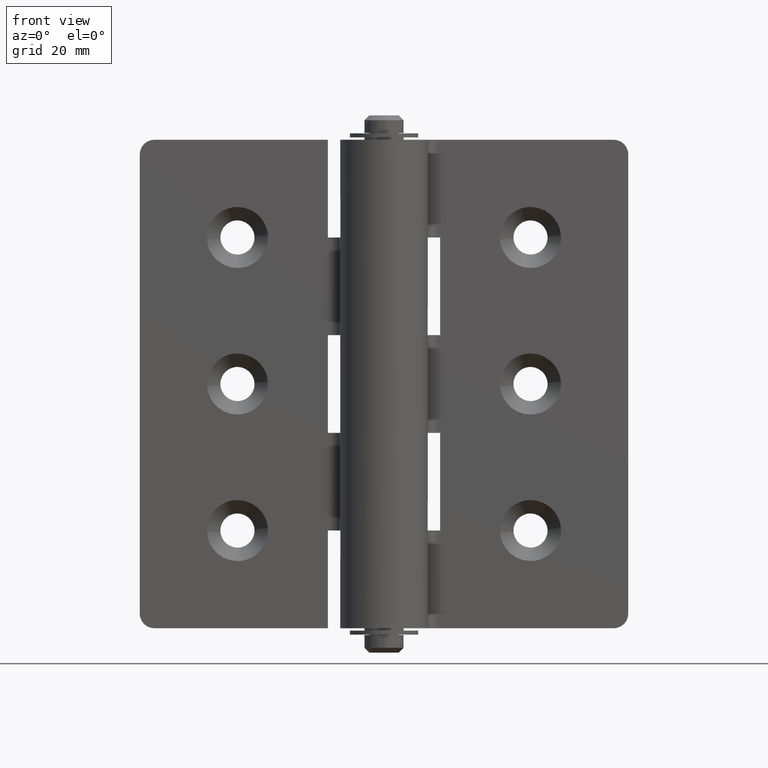
[diagram: clean part render]
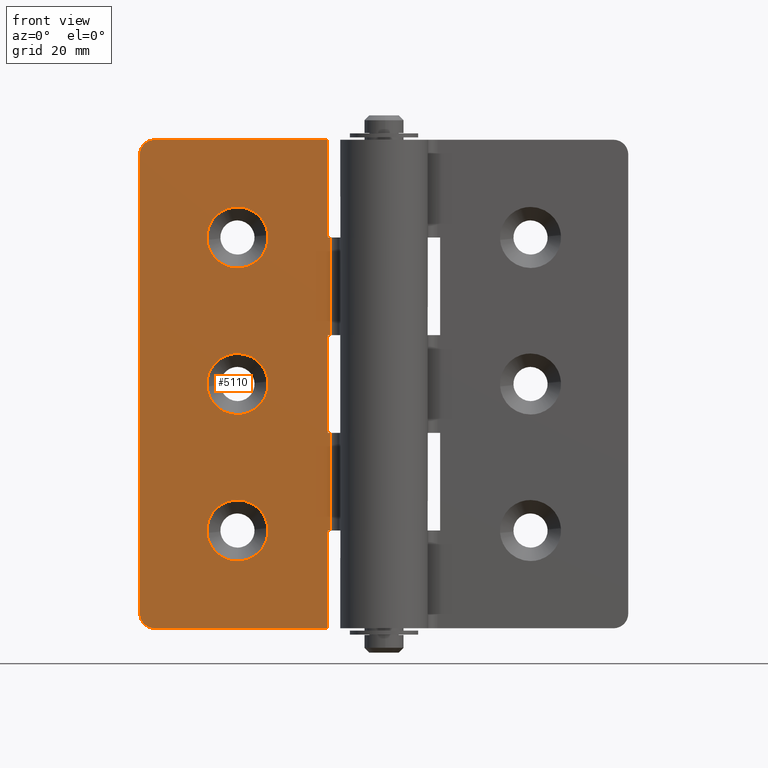
[diagram: same view with one face highlighted and labeled with its STEP entity id]
A machine part, front view. The second image highlights one B-rep face of the part: STEP entity #5110.
In plain terms, the highlighted face is a freeform B-spline surface patch.
Its self-contained STEP definition (entity closure, byte-faithful):
#3210=CARTESIAN_POINT('',(-23.769266664164942,2.999999999992340,80.490369348358399));
#3211=VERTEX_POINT('',#3210);
#3217=CARTESIAN_POINT('',(-30.0,3.0,86.250000000000014));
#3218=VERTEX_POINT('',#3217);
#3219=CARTESIAN_POINT('',(-30.0,3.0,86.250000000000014));
#3220=CARTESIAN_POINT('',(-24.222559427187036,2.999999999996170,86.250000000000341));
#3221=CARTESIAN_POINT('',(-23.769266664164938,2.999999999992340,80.490369348358399));
#3229=(BOUNDED_CURVE()B_SPLINE_CURVE(2,(#3219,#3220,#3221),.UNSPECIFIED.,.F.,.U.)B_SPLINE_CURVE_WITH_KNOTS((3,3),(0.0,0.236331300631150),.UNSPECIFIED.)CURVE()GEOMETRIC_REPRESENTATION_ITEM()RATIONAL_B_SPLINE_CURVE((1.0,0.723120658607091,0.969723356168442))REPRESENTATION_ITEM(''));
#3230=EDGE_CURVE('',#3218,#3211,#3229,.T.);
#3232=CARTESIAN_POINT('',(-36.230733335835062,2.999999999992342,79.509630651641601));
#3233=VERTEX_POINT('',#3232);
#3234=CARTESIAN_POINT('',(-36.230733335835055,2.999999999992342,79.509630651641601));
#3235=CARTESIAN_POINT('',(-36.250000000007489,2.999999999992481,79.754436831171958));
#3236=CARTESIAN_POINT('',(-36.250000000007333,2.999999999992632,79.999999999999446));
#3237=CARTESIAN_POINT('',(-36.250000000003524,2.999999999996461,86.249999999999730));
#3238=CARTESIAN_POINT('',(-30.0,3.0,86.250000000000014));
#3246=(BOUNDED_CURVE()B_SPLINE_CURVE(2,(#3234,#3235,#3236,#3237,#3238),.UNSPECIFIED.,.F.,.U.)B_SPLINE_CURVE_WITH_KNOTS((3,2,3),(0.736331300631150,0.750000000000000,1.0),.UNSPECIFIED.)CURVE()GEOMETRIC_REPRESENTATION_ITEM()RATIONAL_B_SPLINE_CURVE((0.969723356168441,0.983986122579457,1.0,0.707106781186547,1.0))REPRESENTATION_ITEM(''));
#3247=EDGE_CURVE('',#3233,#3218,#3246,.T.);
#3283=CARTESIAN_POINT('',(-30.0,3.0,73.750000000000000));
#3284=VERTEX_POINT('',#3283);
#3285=CARTESIAN_POINT('',(-30.0,3.0,73.750000000000000));
#3286=CARTESIAN_POINT('',(-35.777440572812949,2.999999999996172,73.749999999999702));
#3287=CARTESIAN_POINT('',(-36.230733335835055,2.999999999992342,79.509630651641601));
#3295=(BOUNDED_CURVE()B_SPLINE_CURVE(2,(#3285,#3286,#3287),.UNSPECIFIED.,.F.,.U.)B_SPLINE_CURVE_WITH_KNOTS((3,3),(0.500000000000000,0.736331300631150),.UNSPECIFIED.)CURVE()GEOMETRIC_REPRESENTATION_ITEM()RATIONAL_B_SPLINE_CURVE((1.0,0.723120658607091,0.969723356168441))REPRESENTATION_ITEM(''));
#3296=EDGE_CURVE('',#3284,#3233,#3295,.T.);
#3298=CARTESIAN_POINT('',(-23.769266664164942,2.999999999992340,80.490369348358399));
#3299=CARTESIAN_POINT('',(-23.749999999992500,2.999999999992479,80.245563168828042));
#3300=CARTESIAN_POINT('',(-23.749999999992649,2.999999999992629,80.000000000000568));
#3301=CARTESIAN_POINT('',(-23.749999999996476,2.999999999996460,73.750000000000270));
#3302=CARTESIAN_POINT('',(-30.0,3.0,73.750000000000000));
#3310=(BOUNDED_CURVE()B_SPLINE_CURVE(2,(#3298,#3299,#3300,#3301,#3302),.UNSPECIFIED.,.F.,.U.)B_SPLINE_CURVE_WITH_KNOTS((3,2,3),(0.236331300631150,0.250000000000000,0.500000000000000),.UNSPECIFIED.)CURVE()GEOMETRIC_REPRESENTATION_ITEM()RATIONAL_B_SPLINE_CURVE((0.969723356168442,0.983986122579457,1.0,0.707106781186547,1.0))REPRESENTATION_ITEM(''));
#3311=EDGE_CURVE('',#3211,#3284,#3310,.T.);
#3522=CARTESIAN_POINT('',(-23.769266664164942,2.999999999992341,50.490369348358414));
#3523=VERTEX_POINT('',#3522);
#3529=CARTESIAN_POINT('',(-30.0,3.0,56.250000000000000));
#3530=VERTEX_POINT('',#3529);
#3531=CARTESIAN_POINT('',(-30.0,3.0,56.250000000000000));
#3532=CARTESIAN_POINT('',(-24.222559427187058,2.999999999996171,56.250000000000298));
#3533=CARTESIAN_POINT('',(-23.769266664164942,2.999999999992342,50.490369348358414));
#3541=(BOUNDED_CURVE()B_SPLINE_CURVE(2,(#3531,#3532,#3533),.UNSPECIFIED.,.F.,.U.)B_SPLINE_CURVE_WITH_KNOTS((3,3),(0.0,0.236331300631149),.UNSPECIFIED.)CURVE()GEOMETRIC_REPRESENTATION_ITEM()RATIONAL_B_SPLINE_CURVE((1.0,0.723120658607092,0.969723356168440))REPRESENTATION_ITEM(''));
#3542=EDGE_CURVE('',#3530,#3523,#3541,.T.);
#3544=CARTESIAN_POINT('',(-36.230733335835062,2.999999999992339,49.509630651641586));
#3545=VERTEX_POINT('',#3544);
#3546=CARTESIAN_POINT('',(-36.230733335835055,2.999999999992339,49.509630651641586));
#3547=CARTESIAN_POINT('',(-36.250000000007496,2.999999999992479,49.754436831171958));
#3548=CARTESIAN_POINT('',(-36.250000000007347,2.999999999992629,49.999999999999417));
#3549=CARTESIAN_POINT('',(-36.250000000003524,2.999999999996460,56.249999999999723));
#3550=CARTESIAN_POINT('',(-30.0,3.0,56.250000000000000));
#3558=(BOUNDED_CURVE()B_SPLINE_CURVE(2,(#3546,#3547,#3548,#3549,#3550),.UNSPECIFIED.,.F.,.U.)B_SPLINE_CURVE_WITH_KNOTS((3,2,3),(0.736331300631150,0.750000000000000,1.0),.UNSPECIFIED.)CURVE()GEOMETRIC_REPRESENTATION_ITEM()RATIONAL_B_SPLINE_CURVE((0.969723356168441,0.983986122579456,1.0,0.707106781186547,1.0))REPRESENTATION_ITEM(''));
#3559=EDGE_CURVE('',#3545,#3530,#3558,.T.);
#3595=CARTESIAN_POINT('',(-30.0,3.0,43.750000000000007));
#3596=VERTEX_POINT('',#3595);
#3597=CARTESIAN_POINT('',(-30.0,3.0,43.750000000000007));
#3598=CARTESIAN_POINT('',(-35.777440572812921,2.999999999996170,43.749999999999709));
#3599=CARTESIAN_POINT('',(-36.230733335835055,2.999999999992339,49.509630651641586));
#3607=(BOUNDED_CURVE()B_SPLINE_CURVE(2,(#3597,#3598,#3599),.UNSPECIFIED.,.F.,.U.)B_SPLINE_CURVE_WITH_KNOTS((3,3),(0.500000000000000,0.736331300631149),.UNSPECIFIED.)CURVE()GEOMETRIC_REPRESENTATION_ITEM()RATIONAL_B_SPLINE_CURVE((1.0,0.723120658607092,0.969723356168440))REPRESENTATION_ITEM(''));
#3608=EDGE_CURVE('',#3596,#3545,#3607,.T.);
#3610=CARTESIAN_POINT('',(-23.769266664164945,2.999999999992342,50.490369348358414));
#3611=CARTESIAN_POINT('',(-23.749999999992507,2.999999999992481,50.245563168828049));
#3612=CARTESIAN_POINT('',(-23.749999999992649,2.999999999992631,50.000000000000583));
#3613=CARTESIAN_POINT('',(-23.749999999996476,2.999999999996461,43.750000000000284));
#3614=CARTESIAN_POINT('',(-30.0,3.0,43.750000000000007));
#3622=(BOUNDED_CURVE()B_SPLINE_CURVE(2,(#3610,#3611,#3612,#3613,#3614),.UNSPECIFIED.,.F.,.U.)B_SPLINE_CURVE_WITH_KNOTS((3,2,3),(0.236331300631150,0.250000000000000,0.500000000000000),.UNSPECIFIED.)CURVE()GEOMETRIC_REPRESENTATION_ITEM()RATIONAL_B_SPLINE_CURVE((0.969723356168440,0.983986122579456,1.0,0.707106781186547,1.0))REPRESENTATION_ITEM(''));
#3623=EDGE_CURVE('',#3523,#3596,#3622,.T.);
#3834=CARTESIAN_POINT('',(-23.769266664164949,2.999999999992341,20.490369348358410));
#3835=VERTEX_POINT('',#3834);
#3841=CARTESIAN_POINT('',(-30.0,3.0,26.250000000000000));
#3842=VERTEX_POINT('',#3841);
#3843=CARTESIAN_POINT('',(-30.0,3.0,26.250000000000000));
#3844=CARTESIAN_POINT('',(-24.222559427187061,2.999999999996171,26.250000000000306));
#3845=CARTESIAN_POINT('',(-23.769266664164945,2.999999999992342,20.490369348358414));
#3853=(BOUNDED_CURVE()B_SPLINE_CURVE(2,(#3843,#3844,#3845),.UNSPECIFIED.,.F.,.U.)B_SPLINE_CURVE_WITH_KNOTS((3,3),(0.0,0.236331300631150),.UNSPECIFIED.)CURVE()GEOMETRIC_REPRESENTATION_ITEM()RATIONAL_B_SPLINE_CURVE((1.0,0.723120658607091,0.969723356168440))REPRESENTATION_ITEM(''));
#3854=EDGE_CURVE('',#3842,#3835,#3853,.T.);
#3856=CARTESIAN_POINT('',(-36.230733335835062,2.999999999992340,19.509630651641590));
#3857=VERTEX_POINT('',#3856);
#3858=CARTESIAN_POINT('',(-36.230733335835055,2.999999999992340,19.509630651641586));
#3859=CARTESIAN_POINT('',(-36.250000000007496,2.999999999992479,19.754436831171954));
#3860=CARTESIAN_POINT('',(-36.250000000007347,2.999999999992630,19.999999999999421));
#3861=CARTESIAN_POINT('',(-36.250000000003524,2.999999999996460,26.249999999999734));
#3862=CARTESIAN_POINT('',(-30.0,3.0,26.250000000000000));
#3870=(BOUNDED_CURVE()B_SPLINE_CURVE(2,(#3858,#3859,#3860,#3861,#3862),.UNSPECIFIED.,.F.,.U.)B_SPLINE_CURVE_WITH_KNOTS((3,2,3),(0.736331300631150,0.750000000000000,1.0),.UNSPECIFIED.)CURVE()GEOMETRIC_REPRESENTATION_ITEM()RATIONAL_B_SPLINE_CURVE((0.969723356168441,0.983986122579456,1.0,0.707106781186547,1.0))REPRESENTATION_ITEM(''));
#3871=EDGE_CURVE('',#3857,#3842,#3870,.T.);
#3907=CARTESIAN_POINT('',(-30.0,3.0,13.750000000000000));
#3908=VERTEX_POINT('',#3907);
#3909=CARTESIAN_POINT('',(-30.0,3.0,13.750000000000000));
#3910=CARTESIAN_POINT('',(-35.777440572812942,2.999999999996170,13.749999999999702));
#3911=CARTESIAN_POINT('',(-36.230733335835055,2.999999999992340,19.509630651641594));
#3919=(BOUNDED_CURVE()B_SPLINE_CURVE(2,(#3909,#3910,#3911),.UNSPECIFIED.,.F.,.U.)B_SPLINE_CURVE_WITH_KNOTS((3,3),(0.500000000000000,0.736331300631150),.UNSPECIFIED.)CURVE()GEOMETRIC_REPRESENTATION_ITEM()RATIONAL_B_SPLINE_CURVE((1.0,0.723120658607091,0.969723356168441))REPRESENTATION_ITEM(''));
#3920=EDGE_CURVE('',#3908,#3857,#3919,.T.);
#3922=CARTESIAN_POINT('',(-23.769266664164945,2.999999999992342,20.490369348358414));
#3923=CARTESIAN_POINT('',(-23.749999999992507,2.999999999992481,20.245563168828053));
#3924=CARTESIAN_POINT('',(-23.749999999992660,2.999999999992630,20.000000000000579));
#3925=CARTESIAN_POINT('',(-23.749999999996476,2.999999999996460,13.750000000000279));
#3926=CARTESIAN_POINT('',(-30.0,3.0,13.750000000000000));
#3934=(BOUNDED_CURVE()B_SPLINE_CURVE(2,(#3922,#3923,#3924,#3925,#3926),.UNSPECIFIED.,.F.,.U.)B_SPLINE_CURVE_WITH_KNOTS((3,2,3),(0.236331300631150,0.250000000000000,0.500000000000000),.UNSPECIFIED.)CURVE()GEOMETRIC_REPRESENTATION_ITEM()RATIONAL_B_SPLINE_CURVE((0.969723356168440,0.983986122579456,1.0,0.707106781186547,1.0))REPRESENTATION_ITEM(''));
#3935=EDGE_CURVE('',#3835,#3908,#3934,.T.);
#4561=CARTESIAN_POINT('',(-50.0,3.0,3.0));
#4562=VERTEX_POINT('',#4561);
#4563=CARTESIAN_POINT('',(-47.0,3.0,0.0));
#4564=VERTEX_POINT('',#4563);
#4565=CARTESIAN_POINT('',(-50.0,3.0,3.0));
#4566=CARTESIAN_POINT('',(-50.0,3.0,0.0));
#4567=CARTESIAN_POINT('',(-47.0,3.0,0.0));
#4575=(BOUNDED_CURVE()B_SPLINE_CURVE(2,(#4565,#4566,#4567),.UNSPECIFIED.,.F.,.U.)CURVE()GEOMETRIC_REPRESENTATION_ITEM()QUASI_UNIFORM_CURVE()RATIONAL_B_SPLINE_CURVE((1.0,0.707106781186548,1.0))REPRESENTATION_ITEM(''));
#4576=EDGE_CURVE('',#4562,#4564,#4575,.T.);
#4606=CARTESIAN_POINT('',(-47.0,3.0,100.0));
#4607=VERTEX_POINT('',#4606);
#4608=CARTESIAN_POINT('',(-50.0,3.0,97.0));
#4609=VERTEX_POINT('',#4608);
#4610=CARTESIAN_POINT('',(-47.0,3.0,100.0));
#4611=CARTESIAN_POINT('',(-50.0,3.0,100.0));
#4612=CARTESIAN_POINT('',(-50.0,3.0,97.0));
#4620=(BOUNDED_CURVE()B_SPLINE_CURVE(2,(#4610,#4611,#4612),.UNSPECIFIED.,.F.,.U.)CURVE()GEOMETRIC_REPRESENTATION_ITEM()QUASI_UNIFORM_CURVE()RATIONAL_B_SPLINE_CURVE((1.0,0.707106781186548,1.0))REPRESENTATION_ITEM(''));
#4621=EDGE_CURVE('',#4607,#4609,#4620,.T.);
#4642=CARTESIAN_POINT('',(-11.500000000000201,3.0,60.0));
#4643=VERTEX_POINT('',#4642);
#4644=CARTESIAN_POINT('',(-11.500000000000201,3.0,40.0));
#4645=VERTEX_POINT('',#4644);
#4646=CARTESIAN_POINT('',(-11.500000000000201,3.0,60.0));
#4647=CARTESIAN_POINT('',(-11.500000000000201,3.0,40.0));
#4648=QUASI_UNIFORM_CURVE('',1,(#4646,#4647),.UNSPECIFIED.,.F.,.U.);
#4649=EDGE_CURVE('',#4643,#4645,#4648,.T.);
#4671=CARTESIAN_POINT('',(-10.954451000000100,3.0,60.0));
#4672=VERTEX_POINT('',#4671);
#4686=CARTESIAN_POINT('',(-10.954451000000100,3.0,60.0));
#4687=CARTESIAN_POINT('',(-11.500000000000201,3.0,60.0));
#4688=QUASI_UNIFORM_CURVE('',1,(#4686,#4687),.UNSPECIFIED.,.F.,.U.);
#4689=EDGE_CURVE('',#4672,#4643,#4688,.T.);
#4707=CARTESIAN_POINT('',(-10.954451000000100,3.0,40.0));
#4708=VERTEX_POINT('',#4707);
#4709=CARTESIAN_POINT('',(-11.500000000000201,3.0,40.0));
#4710=CARTESIAN_POINT('',(-10.954451000000100,3.0,40.0));
#4711=QUASI_UNIFORM_CURVE('',1,(#4709,#4710),.UNSPECIFIED.,.F.,.U.);
#4712=EDGE_CURVE('',#4645,#4708,#4711,.T.);
#4780=CARTESIAN_POINT('',(-11.500000000000201,3.0,20.0));
#4781=VERTEX_POINT('',#4780);
#4782=CARTESIAN_POINT('',(-11.500000000000201,3.0,0.0));
#4783=VERTEX_POINT('',#4782);
#4784=CARTESIAN_POINT('',(-11.500000000000201,3.0,20.0));
#4785=CARTESIAN_POINT('',(-11.500000000000201,3.0,0.0));
#4786=QUASI_UNIFORM_CURVE('',1,(#4784,#4785),.UNSPECIFIED.,.F.,.U.);
#4787=EDGE_CURVE('',#4781,#4783,#4786,.T.);
#4844=CARTESIAN_POINT('',(-10.954451000000100,3.0,20.0));
#4845=VERTEX_POINT('',#4844);
#4859=CARTESIAN_POINT('',(-10.954451000000100,3.0,20.0));
#4860=CARTESIAN_POINT('',(-11.500000000000201,3.0,20.0));
#4861=QUASI_UNIFORM_CURVE('',1,(#4859,#4860),.UNSPECIFIED.,.F.,.U.);
#4862=EDGE_CURVE('',#4845,#4781,#4861,.T.);
#4880=CARTESIAN_POINT('',(-11.500000000000201,3.0,100.0));
#4881=VERTEX_POINT('',#4880);
#4882=CARTESIAN_POINT('',(-11.500000000000201,3.0,80.0));
#4883=VERTEX_POINT('',#4882);
#4884=CARTESIAN_POINT('',(-11.500000000000201,3.0,100.0));
#4885=CARTESIAN_POINT('',(-11.500000000000201,3.0,80.0));
#4886=QUASI_UNIFORM_CURVE('',1,(#4884,#4885),.UNSPECIFIED.,.F.,.U.);
#4887=EDGE_CURVE('',#4881,#4883,#4886,.T.);
#4908=CARTESIAN_POINT('',(-10.954451000000100,3.0,80.0));
#4909=VERTEX_POINT('',#4908);
#4910=CARTESIAN_POINT('',(-11.500000000000201,3.0,80.0));
#4911=CARTESIAN_POINT('',(-10.954451000000100,3.0,80.0));
#4912=QUASI_UNIFORM_CURVE('',1,(#4910,#4911),.UNSPECIFIED.,.F.,.U.);
#4913=EDGE_CURVE('',#4883,#4909,#4912,.T.);
#4945=CARTESIAN_POINT('',(-11.500000000000201,3.0,0.0));
#4946=CARTESIAN_POINT('',(-47.0,3.0,0.0));
#4947=QUASI_UNIFORM_CURVE('',1,(#4945,#4946),.UNSPECIFIED.,.F.,.U.);
#4948=EDGE_CURVE('',#4783,#4564,#4947,.T.);
#4963=CARTESIAN_POINT('',(-11.500000000000201,3.0,100.0));
#4964=CARTESIAN_POINT('',(-47.0,3.0,100.0));
#4965=QUASI_UNIFORM_CURVE('',1,(#4963,#4964),.UNSPECIFIED.,.F.,.U.);
#4966=EDGE_CURVE('',#4881,#4607,#4965,.T.);
#4986=CARTESIAN_POINT('',(-10.954451000000100,3.0,80.0));
#4987=CARTESIAN_POINT('',(-10.954451000000100,3.0,60.0));
#4988=QUASI_UNIFORM_CURVE('',1,(#4986,#4987),.UNSPECIFIED.,.F.,.U.);
#4989=EDGE_CURVE('',#4909,#4672,#4988,.T.);
#5037=CARTESIAN_POINT('',(-50.0,3.0,97.0));
#5038=CARTESIAN_POINT('',(-50.0,3.0,3.0));
#5039=QUASI_UNIFORM_CURVE('',1,(#5037,#5038),.UNSPECIFIED.,.F.,.U.);
#5040=EDGE_CURVE('',#4609,#4562,#5039,.T.);
#5062=CARTESIAN_POINT('',(-10.954451000000100,3.0,40.0));
#5063=CARTESIAN_POINT('',(-10.954451000000100,3.0,20.0));
#5064=QUASI_UNIFORM_CURVE('',1,(#5062,#5063),.UNSPECIFIED.,.F.,.U.);
#5065=EDGE_CURVE('',#4708,#4845,#5064,.T.);
#5071=CARTESIAN_POINT('',(-51.950325096872149,3.0,104.994999806180600));
#5072=CARTESIAN_POINT('',(-51.950325096872149,3.0,-4.995002488389611));
#5073=CARTESIAN_POINT('',(-9.004124855844722,3.0,104.994999806180600));
#5074=CARTESIAN_POINT('',(-9.004124855844722,3.0,-4.995002488389611));
#5075=B_SPLINE_SURFACE_WITH_KNOTS('',1,1,((#5071,#5073),(#5072,#5074)),.UNSPECIFIED.,.F.,.F.,.U.,(2,2),(2,2),(0.0,109.990002294570200),(0.0,42.946200241027427),.UNSPECIFIED.);
#5076=ORIENTED_EDGE('',*,*,#5040,.T.);
#5077=ORIENTED_EDGE('',*,*,#4576,.T.);
#5078=ORIENTED_EDGE('',*,*,#4948,.F.);
#5079=ORIENTED_EDGE('',*,*,#4787,.F.);
#5080=ORIENTED_EDGE('',*,*,#4862,.F.);
#5081=ORIENTED_EDGE('',*,*,#5065,.F.);
#5082=ORIENTED_EDGE('',*,*,#4712,.F.);
#5083=ORIENTED_EDGE('',*,*,#4649,.F.);
#5084=ORIENTED_EDGE('',*,*,#4689,.F.);
#5085=ORIENTED_EDGE('',*,*,#4989,.F.);
#5086=ORIENTED_EDGE('',*,*,#4913,.F.);
#5087=ORIENTED_EDGE('',*,*,#4887,.F.);
#5088=ORIENTED_EDGE('',*,*,#4966,.T.);
#5089=ORIENTED_EDGE('',*,*,#4621,.T.);
#5090=EDGE_LOOP('',(#5076,#5077,#5078,#5079,#5080,#5081,#5082,#5083,#5084,#5085,#5086,#5087,#5088,#5089));
#5091=FACE_OUTER_BOUND('',#5090,.T.);
#5092=ORIENTED_EDGE('',*,*,#3920,.T.);
#5093=ORIENTED_EDGE('',*,*,#3871,.T.);
#5094=ORIENTED_EDGE('',*,*,#3854,.T.);
#5095=ORIENTED_EDGE('',*,*,#3935,.T.);
#5096=EDGE_LOOP('',(#5092,#5093,#5094,#5095));
#5097=FACE_BOUND('',#5096,.T.);
#5098=ORIENTED_EDGE('',*,*,#3608,.T.);
#5099=ORIENTED_EDGE('',*,*,#3559,.T.);
#5100=ORIENTED_EDGE('',*,*,#3542,.T.);
#5101=ORIENTED_EDGE('',*,*,#3623,.T.);
#5102=EDGE_LOOP('',(#5098,#5099,#5100,#5101));
#5103=FACE_BOUND('',#5102,.T.);
#5104=ORIENTED_EDGE('',*,*,#3296,.T.);
#5105=ORIENTED_EDGE('',*,*,#3247,.T.);
#5106=ORIENTED_EDGE('',*,*,#3230,.T.);
#5107=ORIENTED_EDGE('',*,*,#3311,.T.);
#5108=EDGE_LOOP('',(#5104,#5105,#5106,#5107));
#5109=FACE_BOUND('',#5108,.T.);
#5110=ADVANCED_FACE('',(#5091,#5097,#5103,#5109),#5075,.T.);